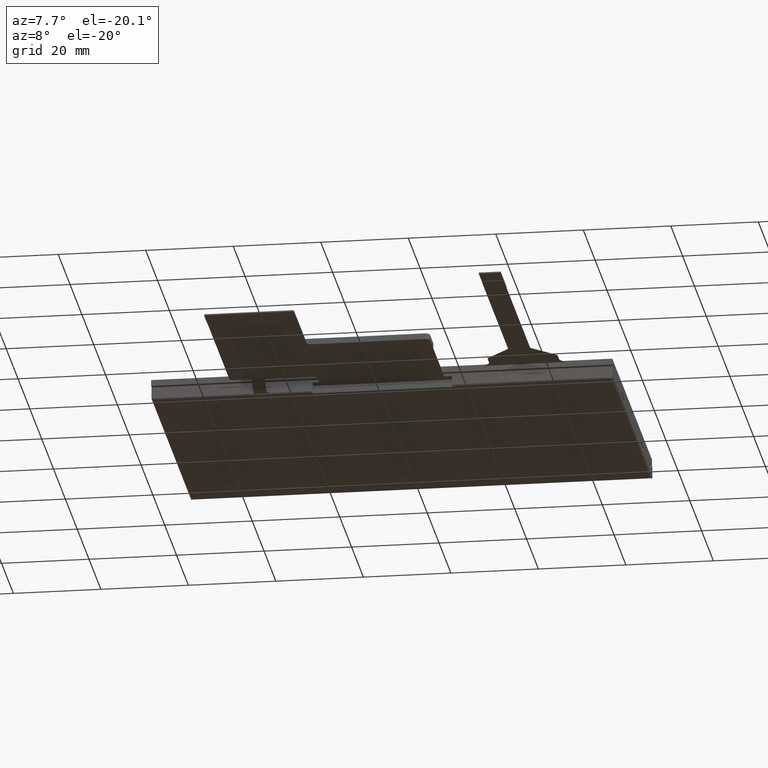
[diagram: clean part render]
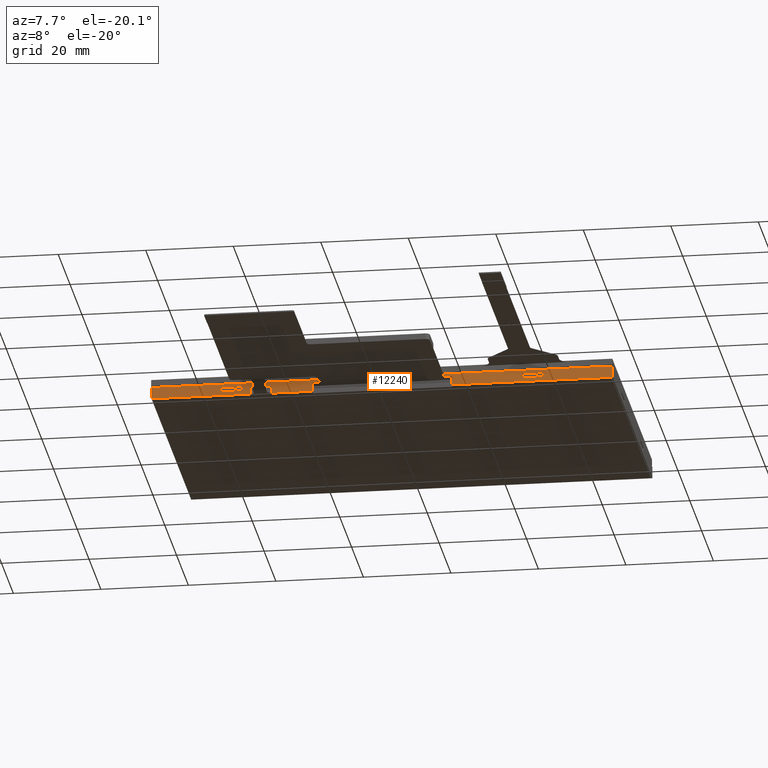
[diagram: same view with one face highlighted and labeled with its STEP entity id]
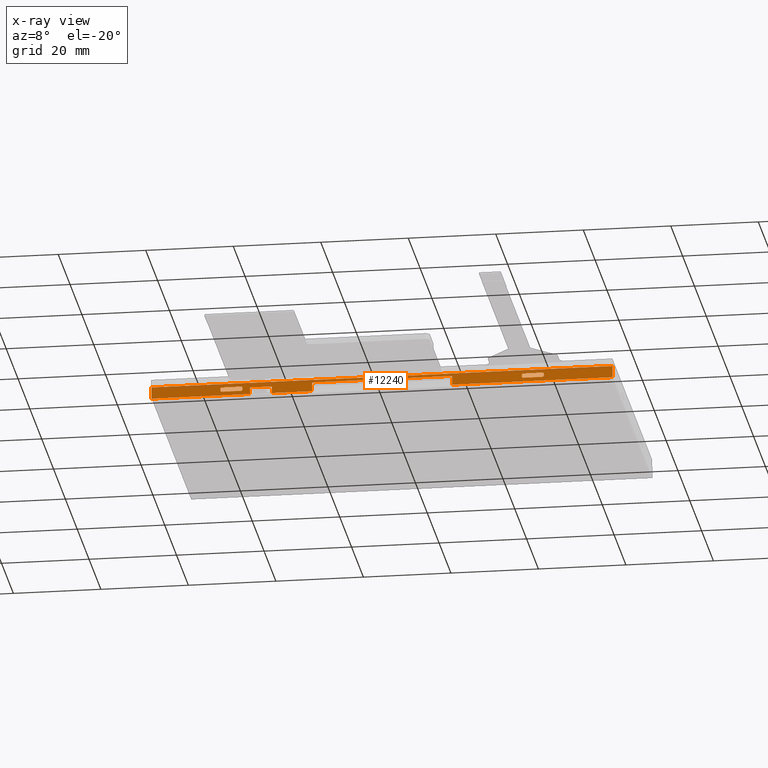
[diagram: x-ray of the same camera — body ghosted, the highlighted face saturated]
A machine part, auxiliary view. The second image highlights one B-rep face of the part: STEP entity #12240.
The next image is the same camera in x-ray: the body ghosted, the highlighted face saturated — about 0% of this face is hidden behind the body in this view.
In plain terms, the highlighted planar face has unit normal (-0, 1, -0).
Its self-contained STEP definition (entity closure, byte-faithful):
#106=FACE_BOUND('',#1066,.T.);
#107=FACE_BOUND('',#1067,.T.);
#152=CIRCLE('',#12817,0.300000000000002);
#154=CIRCLE('',#12820,0.300000000000002);
#156=CIRCLE('',#12823,0.300000000000002);
#158=CIRCLE('',#12826,0.300000000000002);
#160=CIRCLE('',#12829,0.300000000000002);
#162=CIRCLE('',#12832,0.300000000000002);
#164=CIRCLE('',#12835,0.300000000000002);
#166=CIRCLE('',#12838,0.300000000000002);
#426=FACE_OUTER_BOUND('',#1065,.T.);
#1065=EDGE_LOOP('',(#8825,#8826,#8827,#8828,#8829,#8830,#8831,#8832,#8833,
#8834,#8835,#8836));
#1066=EDGE_LOOP('',(#8837,#8838,#8839,#8840,#8841,#8842,#8843,#8844));
#1067=EDGE_LOOP('',(#8845,#8846,#8847,#8848,#8849,#8850,#8851,#8852));
#1582=LINE('',#16770,#3252);
#1613=LINE('',#16847,#3283);
#1816=LINE('',#17451,#3486);
#1828=LINE('',#17476,#3498);
#1840=LINE('',#17499,#3510);
#1842=LINE('',#17504,#3512);
#1847=LINE('',#17515,#3517);
#1852=LINE('',#17524,#3522);
#1855=LINE('',#17528,#3525);
#1857=LINE('',#17531,#3527);
#1858=LINE('',#17533,#3528);
#1860=LINE('',#17536,#3530);
#1862=LINE('',#17539,#3532);
#1865=LINE('',#17543,#3535);
#1867=LINE('',#17546,#3537);
#1869=LINE('',#17549,#3539);
#1922=LINE('',#17640,#3592);
#1934=LINE('',#17663,#3604);
#1936=LINE('',#17665,#3606);
#1959=LINE('',#17714,#3629);
#3252=VECTOR('',#13551,1000.);
#3283=VECTOR('',#13608,1000.);
#3486=VECTOR('',#14155,1000.);
#3498=VECTOR('',#14169,1000.);
#3510=VECTOR('',#14183,1000.);
#3512=VECTOR('',#14187,1000.);
#3517=VECTOR('',#14194,1000.);
#3522=VECTOR('',#14201,1000.);
#3525=VECTOR('',#14206,1000.);
#3527=VECTOR('',#14210,1000.);
#3528=VECTOR('',#14213,1000.);
#3530=VECTOR('',#14217,1000.);
#3532=VECTOR('',#14221,1000.);
#3535=VECTOR('',#14226,1000.);
#3537=VECTOR('',#14230,1000.);
#3539=VECTOR('',#14234,1000.);
#3592=VECTOR('',#14355,1000.);
#3604=VECTOR('',#14369,1000.);
#3606=VECTOR('',#14371,1000.);
#3629=VECTOR('',#14414,1000.);
#4915=VERTEX_POINT('',#16767);
#4916=VERTEX_POINT('',#16769);
#4948=VERTEX_POINT('',#16844);
#4949=VERTEX_POINT('',#16846);
#5051=VERTEX_POINT('',#17140);
#5052=VERTEX_POINT('',#17142);
#5055=VERTEX_POINT('',#17149);
#5056=VERTEX_POINT('',#17151);
#5059=VERTEX_POINT('',#17158);
#5060=VERTEX_POINT('',#17160);
#5063=VERTEX_POINT('',#17167);
#5064=VERTEX_POINT('',#17169);
#5067=VERTEX_POINT('',#17176);
#5068=VERTEX_POINT('',#17178);
#5071=VERTEX_POINT('',#17185);
#5072=VERTEX_POINT('',#17187);
#5075=VERTEX_POINT('',#17194);
#5076=VERTEX_POINT('',#17196);
#5079=VERTEX_POINT('',#17203);
#5080=VERTEX_POINT('',#17205);
#5177=VERTEX_POINT('',#17449);
#5178=VERTEX_POINT('',#17450);
#5189=VERTEX_POINT('',#17474);
#5190=VERTEX_POINT('',#17475);
#5201=VERTEX_POINT('',#17502);
#5202=VERTEX_POINT('',#17503);
#5206=VERTEX_POINT('',#17513);
#5207=VERTEX_POINT('',#17514);
#6132=EDGE_CURVE('',#4916,#4915,#1582,.T.);
#6171=EDGE_CURVE('',#4948,#4949,#1613,.T.);
#6316=EDGE_CURVE('',#5052,#5051,#152,.T.);
#6320=EDGE_CURVE('',#5056,#5055,#154,.T.);
#6324=EDGE_CURVE('',#5060,#5059,#156,.T.);
#6328=EDGE_CURVE('',#5064,#5063,#158,.T.);
#6332=EDGE_CURVE('',#5068,#5067,#160,.T.);
#6336=EDGE_CURVE('',#5072,#5071,#162,.T.);
#6340=EDGE_CURVE('',#5076,#5075,#164,.T.);
#6344=EDGE_CURVE('',#5080,#5079,#166,.T.);
#6458=EDGE_CURVE('',#5177,#5178,#1816,.T.);
#6470=EDGE_CURVE('',#5189,#5190,#1828,.T.);
#6482=EDGE_CURVE('',#5178,#5190,#1840,.T.);
#6484=EDGE_CURVE('',#5201,#5202,#1842,.T.);
#6489=EDGE_CURVE('',#5206,#5207,#1847,.T.);
#6494=EDGE_CURVE('',#5202,#5207,#1852,.T.);
#6497=EDGE_CURVE('',#5075,#5080,#1855,.T.);
#6499=EDGE_CURVE('',#5076,#5067,#1857,.T.);
#6500=EDGE_CURVE('',#5068,#5071,#1858,.T.);
#6502=EDGE_CURVE('',#5079,#5072,#1860,.T.);
#6504=EDGE_CURVE('',#5063,#5052,#1862,.T.);
#6507=EDGE_CURVE('',#5059,#5064,#1865,.T.);
#6509=EDGE_CURVE('',#5060,#5055,#1867,.T.);
#6511=EDGE_CURVE('',#5056,#5051,#1869,.T.);
#6564=EDGE_CURVE('',#4916,#4948,#1922,.T.);
#6576=EDGE_CURVE('',#4915,#5201,#1934,.T.);
#6578=EDGE_CURVE('',#5189,#4949,#1936,.T.);
#6605=EDGE_CURVE('',#5206,#5177,#1959,.T.);
#8825=ORIENTED_EDGE('',*,*,#6482,.T.);
#8826=ORIENTED_EDGE('',*,*,#6470,.F.);
#8827=ORIENTED_EDGE('',*,*,#6578,.T.);
#8828=ORIENTED_EDGE('',*,*,#6171,.F.);
#8829=ORIENTED_EDGE('',*,*,#6564,.F.);
#8830=ORIENTED_EDGE('',*,*,#6132,.T.);
#8831=ORIENTED_EDGE('',*,*,#6576,.T.);
#8832=ORIENTED_EDGE('',*,*,#6484,.T.);
#8833=ORIENTED_EDGE('',*,*,#6494,.T.);
#8834=ORIENTED_EDGE('',*,*,#6489,.F.);
#8835=ORIENTED_EDGE('',*,*,#6605,.T.);
#8836=ORIENTED_EDGE('',*,*,#6458,.T.);
#8837=ORIENTED_EDGE('',*,*,#6507,.T.);
#8838=ORIENTED_EDGE('',*,*,#6328,.T.);
#8839=ORIENTED_EDGE('',*,*,#6504,.T.);
#8840=ORIENTED_EDGE('',*,*,#6316,.T.);
#8841=ORIENTED_EDGE('',*,*,#6511,.F.);
#8842=ORIENTED_EDGE('',*,*,#6320,.T.);
#8843=ORIENTED_EDGE('',*,*,#6509,.F.);
#8844=ORIENTED_EDGE('',*,*,#6324,.T.);
#8845=ORIENTED_EDGE('',*,*,#6497,.T.);
#8846=ORIENTED_EDGE('',*,*,#6344,.T.);
#8847=ORIENTED_EDGE('',*,*,#6502,.T.);
#8848=ORIENTED_EDGE('',*,*,#6336,.T.);
#8849=ORIENTED_EDGE('',*,*,#6500,.F.);
#8850=ORIENTED_EDGE('',*,*,#6332,.T.);
#8851=ORIENTED_EDGE('',*,*,#6499,.F.);
#8852=ORIENTED_EDGE('',*,*,#6340,.T.);
#11647=PLANE('',#12977);
#12240=ADVANCED_FACE('',(#426,#106,#107),#11647,.F.);
#12817=AXIS2_PLACEMENT_3D('',#17143,#13870,#13871);
#12820=AXIS2_PLACEMENT_3D('',#17152,#13878,#13879);
#12823=AXIS2_PLACEMENT_3D('',#17161,#13886,#13887);
#12826=AXIS2_PLACEMENT_3D('',#17170,#13894,#13895);
#12829=AXIS2_PLACEMENT_3D('',#17179,#13902,#13903);
#12832=AXIS2_PLACEMENT_3D('',#17188,#13910,#13911);
#12835=AXIS2_PLACEMENT_3D('',#17197,#13918,#13919);
#12838=AXIS2_PLACEMENT_3D('',#17206,#13926,#13927);
#12977=AXIS2_PLACEMENT_3D('',#17713,#14412,#14413);
#13551=DIRECTION('',(5.83882195012889E-17,2.55534994944385E-33,-1.));
#13608=DIRECTION('',(5.83882195012889E-17,2.55534994944385E-33,-1.));
#13870=DIRECTION('center_axis',(-8.88178419700111E-16,1.,-4.93038065763141E-32));
#13871=DIRECTION('ref_axis',(-1.,-8.88178419700111E-16,-5.83882195012889E-17));
#13878=DIRECTION('center_axis',(-8.88178419700111E-16,1.,-4.93038065763141E-32));
#13879=DIRECTION('ref_axis',(-1.,-8.88178419700111E-16,-5.83882195012889E-17));
#13886=DIRECTION('center_axis',(-8.88178419700111E-16,1.,-4.93038065763141E-32));
#13887=DIRECTION('ref_axis',(-1.,-8.88178419700111E-16,-5.83882195012889E-17));
#13894=DIRECTION('center_axis',(-8.88178419700111E-16,1.,-4.93038065763141E-32));
#13895=DIRECTION('ref_axis',(-1.,-8.88178419700111E-16,-5.83882195012889E-17));
#13902=DIRECTION('center_axis',(-8.88178419700111E-16,1.,-4.93038065763141E-32));
#13903=DIRECTION('ref_axis',(-1.,-8.88178419700111E-16,-5.83882195012889E-17));
#13910=DIRECTION('center_axis',(-8.88178419700111E-16,1.,-4.93038065763141E-32));
#13911=DIRECTION('ref_axis',(-1.,-8.88178419700111E-16,-5.83882195012889E-17));
#13918=DIRECTION('center_axis',(-8.88178419700111E-16,1.,-4.93038065763141E-32));
#13919=DIRECTION('ref_axis',(-1.,-8.88178419700111E-16,-5.83882195012889E-17));
#13926=DIRECTION('center_axis',(-8.88178419700111E-16,1.,-4.93038065763141E-32));
#13927=DIRECTION('ref_axis',(-1.,-8.88178419700111E-16,-5.83882195012889E-17));
#14155=DIRECTION('',(-5.83882195012889E-17,-2.55534994944385E-33,1.));
#14169=DIRECTION('',(-5.83882195012889E-17,-2.55534994944385E-33,1.));
#14183=DIRECTION('',(1.,8.88178419700111E-16,5.83882195012889E-17));
#14187=DIRECTION('',(-5.83882195012889E-17,-2.55534994944385E-33,1.));
#14194=DIRECTION('',(-5.83882195012889E-17,-2.55534994944385E-33,1.));
#14201=DIRECTION('',(1.,8.88178419700111E-16,5.83882195012889E-17));
#14206=DIRECTION('',(5.83882195012889E-17,2.55534994944385E-33,-1.));
#14210=DIRECTION('',(-1.,-8.88178419700111E-16,-5.83882195012889E-17));
#14213=DIRECTION('',(5.83882195012889E-17,2.55534994944385E-33,-1.));
#14217=DIRECTION('',(-1.,-8.88178419700111E-16,-5.83882195012889E-17));
#14221=DIRECTION('',(5.83882195012889E-17,2.55534994944385E-33,-1.));
#14226=DIRECTION('',(1.,8.88178419700111E-16,5.83882195012889E-17));
#14230=DIRECTION('',(5.83882195012889E-17,2.55534994944385E-33,-1.));
#14234=DIRECTION('',(1.,8.88178419700111E-16,5.83882195012889E-17));
#14355=DIRECTION('',(1.,8.88178419700111E-16,5.83882195012889E-17));
#14369=DIRECTION('',(1.,8.88178419700111E-16,5.83882195012889E-17));
#14371=DIRECTION('',(1.,8.88178419700111E-16,5.83882195012889E-17));
#14412=DIRECTION('center_axis',(-8.88178419700111E-16,1.,-4.93038065763141E-32));
#14413=DIRECTION('ref_axis',(-1.,-8.88178419700111E-16,-5.83882195012889E-17));
#14414=DIRECTION('',(1.,8.88178419700111E-16,5.83882195012889E-17));
#16767=CARTESIAN_POINT('',(-52.7500000000001,-35.9220000000018,-4.25999999999993));
#16769=CARTESIAN_POINT('',(-52.7500000000001,-35.9220000000018,-1.55999999999993));
#16770=CARTESIAN_POINT('',(-52.7500000000001,-35.9220000000018,-1.55999999999993));
#16844=CARTESIAN_POINT('',(52.6499999999999,-35.9220000000017,-1.55999999999993));
#16846=CARTESIAN_POINT('',(52.6499999999999,-35.9220000000017,-4.25999999999993));
#16847=CARTESIAN_POINT('',(52.6499999999999,-35.9220000000017,-1.55999999999993));
#17140=CARTESIAN_POINT('',(-32.3000000000001,-35.9220000000018,-3.35999999999993));
#17142=CARTESIAN_POINT('',(-32.0000000000001,-35.9220000000018,-3.05999999999993));
#17143=CARTESIAN_POINT('Origin',(-32.3000000000001,-35.9220000000018,-3.05999999999993));
#17149=CARTESIAN_POINT('',(-37.0000000000001,-35.9220000000018,-3.05999999999993));
#17151=CARTESIAN_POINT('',(-36.7000000000001,-35.9220000000018,-3.35999999999993));
#17152=CARTESIAN_POINT('Origin',(-36.7000000000001,-35.9220000000018,-3.05999999999993));
#17158=CARTESIAN_POINT('',(-36.7000000000001,-35.9220000000018,-2.35999999999993));
#17160=CARTESIAN_POINT('',(-37.0000000000001,-35.9220000000018,-2.65999999999993));
#17161=CARTESIAN_POINT('Origin',(-36.7000000000001,-35.9220000000018,-2.65999999999993));
#17167=CARTESIAN_POINT('',(-32.0000000000001,-35.9220000000018,-2.65999999999993));
#17169=CARTESIAN_POINT('',(-32.3000000000001,-35.9220000000018,-2.35999999999993));
#17170=CARTESIAN_POINT('Origin',(-32.3000000000001,-35.9220000000018,-2.65999999999993));
#17176=CARTESIAN_POINT('',(32.1999999999999,-35.9220000000017,-2.35999999999993));
#17178=CARTESIAN_POINT('',(31.8999999999999,-35.9220000000017,-2.65999999999993));
#17179=CARTESIAN_POINT('Origin',(32.1999999999999,-35.9220000000017,-2.65999999999993));
#17185=CARTESIAN_POINT('',(31.8999999999999,-35.9220000000017,-3.05999999999993));
#17187=CARTESIAN_POINT('',(32.1999999999999,-35.9220000000017,-3.35999999999993));
#17188=CARTESIAN_POINT('Origin',(32.1999999999999,-35.9220000000017,-3.05999999999993));
#17194=CARTESIAN_POINT('',(36.8999999999999,-35.9220000000017,-2.65999999999993));
#17196=CARTESIAN_POINT('',(36.5999999999999,-35.9220000000017,-2.35999999999993));
#17197=CARTESIAN_POINT('Origin',(36.5999999999999,-35.9220000000017,-2.65999999999993));
#17203=CARTESIAN_POINT('',(36.5999999999999,-35.9220000000017,-3.35999999999993));
#17205=CARTESIAN_POINT('',(36.8999999999999,-35.9220000000017,-3.05999999999993));
#17206=CARTESIAN_POINT('Origin',(36.5999999999999,-35.9220000000017,-3.05999999999993));
#17449=CARTESIAN_POINT('',(-16.0500000000001,-35.9220000000018,-4.25999999999993));
#17450=CARTESIAN_POINT('',(-16.0500000000001,-35.9220000000018,-2.15999999999993));
#17451=CARTESIAN_POINT('',(-16.0500000000001,-35.9220000000018,-4.25999999999993));
#17474=CARTESIAN_POINT('',(15.9499999999999,-35.9220000000017,-4.25999999999993));
#17475=CARTESIAN_POINT('',(15.9499999999999,-35.9220000000017,-2.15999999999993));
#17476=CARTESIAN_POINT('',(15.9499999999999,-35.9220000000017,-4.25999999999993));
#17499=CARTESIAN_POINT('',(-16.0500000000001,-35.9220000000018,-2.15999999999993));
#17502=CARTESIAN_POINT('',(-30.2500000000001,-35.9220000000018,-4.25999999999993));
#17503=CARTESIAN_POINT('',(-30.2500000000001,-35.9220000000018,-2.65999999999993));
#17504=CARTESIAN_POINT('',(-30.2500000000001,-35.9220000000018,-4.25999999999993));
#17513=CARTESIAN_POINT('',(-25.2500000000001,-35.9220000000018,-4.25999999999993));
#17514=CARTESIAN_POINT('',(-25.2500000000001,-35.9220000000018,-2.65999999999993));
#17515=CARTESIAN_POINT('',(-25.2500000000001,-35.9220000000018,-4.25999999999993));
#17524=CARTESIAN_POINT('',(-30.2500000000001,-35.9220000000018,-2.65999999999993));
#17528=CARTESIAN_POINT('',(36.8999999999999,-35.9220000000017,-2.35999999999993));
#17531=CARTESIAN_POINT('',(36.8999999999999,-35.9220000000017,-2.35999999999993));
#17533=CARTESIAN_POINT('',(31.8999999999999,-35.9220000000017,-2.35999999999993));
#17536=CARTESIAN_POINT('',(36.8999999999999,-35.9220000000017,-3.35999999999993));
#17539=CARTESIAN_POINT('',(-32.0000000000001,-35.9220000000018,-2.35999999999993));
#17543=CARTESIAN_POINT('',(-37.0000000000001,-35.9220000000018,-2.35999999999993));
#17546=CARTESIAN_POINT('',(-37.0000000000001,-35.9220000000018,-2.35999999999993));
#17549=CARTESIAN_POINT('',(-37.0000000000001,-35.9220000000018,-3.35999999999993));
#17640=CARTESIAN_POINT('',(52.6499999999999,-35.9220000000017,-1.55999999999993));
#17663=CARTESIAN_POINT('',(52.6499999999999,-35.9220000000017,-4.25999999999993));
#17665=CARTESIAN_POINT('',(52.6499999999999,-35.9220000000017,-4.25999999999993));
#17713=CARTESIAN_POINT('Origin',(52.6499999999999,-35.9220000000017,-1.55999999999993));
#17714=CARTESIAN_POINT('',(52.6499999999999,-35.9220000000017,-4.25999999999993));